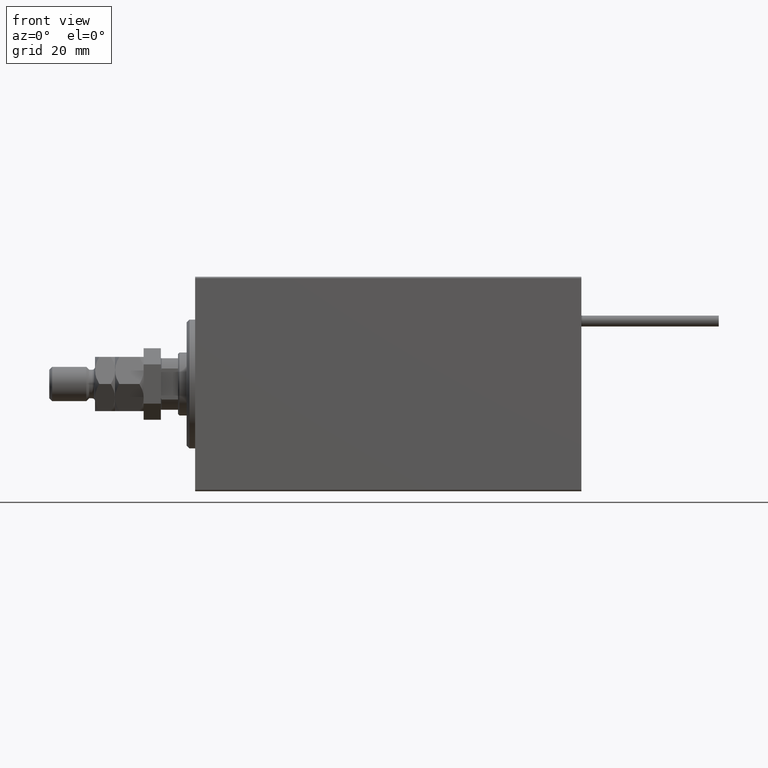
[diagram: clean part render]
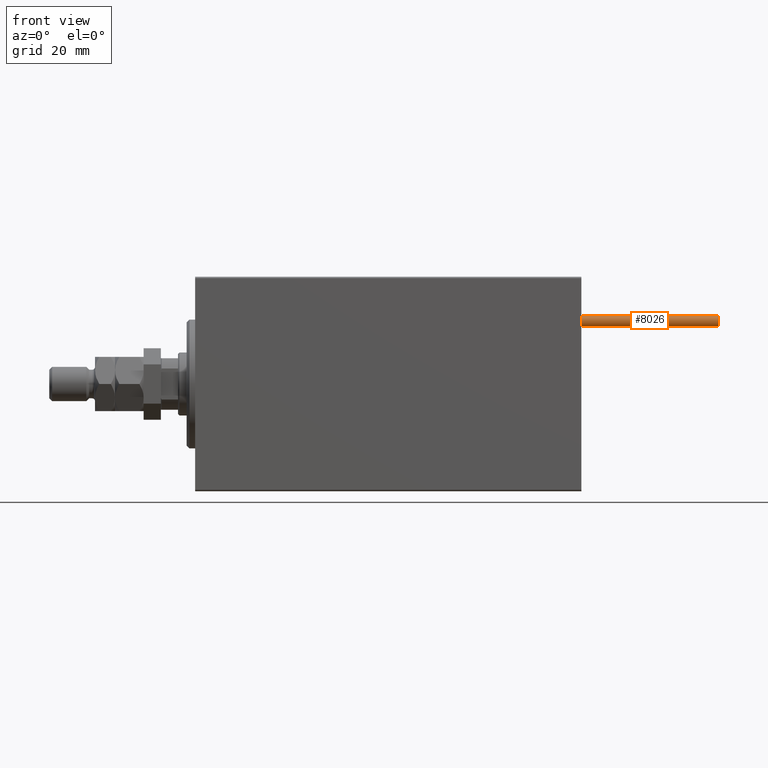
[diagram: same view with one face highlighted and labeled with its STEP entity id]
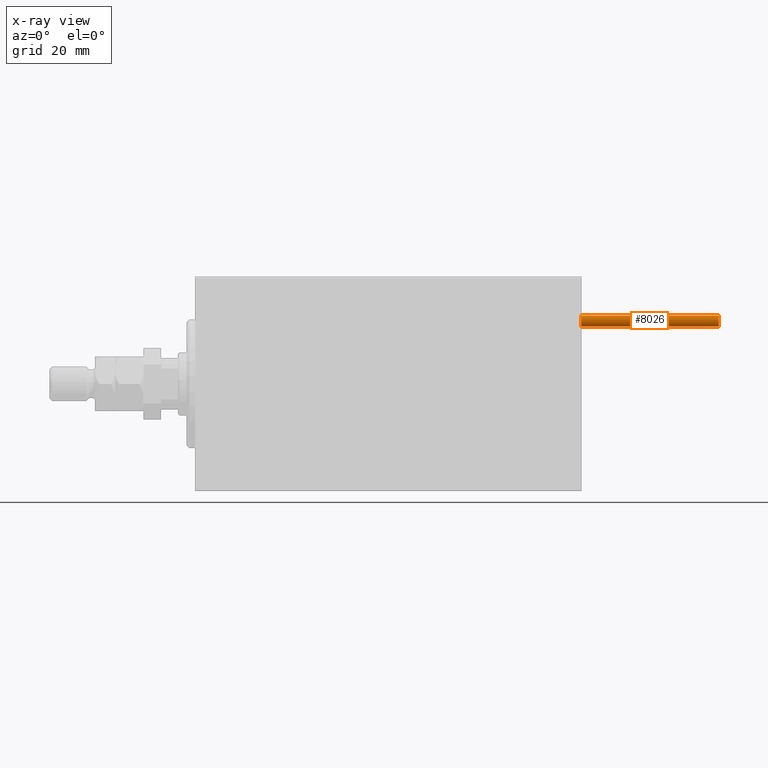
[diagram: x-ray of the same camera — body ghosted, the highlighted face saturated]
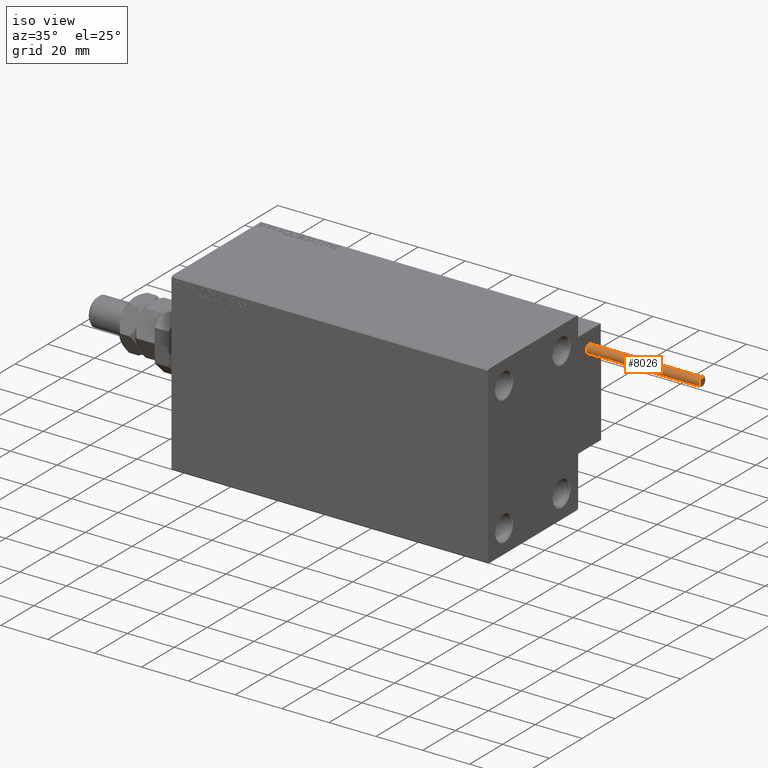
[diagram: same view with one face highlighted and labeled with its STEP entity id]
A machine part, front view. The second image highlights one B-rep face of the part: STEP entity #8026.
The next image is the same camera in x-ray: the body ghosted, the highlighted face saturated — about 0% of this face is hidden behind the body in this view.
A second angle (iso view) of the same face is appended — the face is thin or edge-on in the first view.
In plain terms, the highlighted cylindrical surface (edge-blend (fillet) strip) has radius 1.9 mm, axis along (-1, -0, -0).
Its self-contained STEP definition (entity closure, byte-faithful):
#276 = VERTEX_POINT ( 'NONE', #9654 ) ;
#869 = CIRCLE ( 'NONE', #4275, 1.899999999999999467 ) ;
#2341 = CARTESIAN_POINT ( 'NONE',  ( 1.899999999999999467, 2.326828918379970872E-16, 48.00000000000000000 ) ) ;
#2508 = CARTESIAN_POINT ( 'NONE',  ( 1.899999999999999467, 2.326828918379970872E-16, 0.000000000000000000 ) ) ;
#4275 = AXIS2_PLACEMENT_3D ( 'NONE', #19992, #15734, #32047 ) ;
#4826 = ORIENTED_EDGE ( 'NONE', *, *, #25665, .T. ) ;
#4994 = LINE ( 'NONE', #21295, #27361 ) ;
#6868 = ORIENTED_EDGE ( 'NONE', *, *, #35856, .T. ) ;
#8026 = ADVANCED_FACE ( 'NONE', ( #27216 ), #31248, .T. ) ;
#9654 = CARTESIAN_POINT ( 'NONE',  ( -1.899999999999999467, 0.000000000000000000, 48.00000000000000000 ) ) ;
#9936 = VERTEX_POINT ( 'NONE', #2508 ) ;
#12875 = VECTOR ( 'NONE', #18290, 1000.000000000000000 ) ;
#15734 = DIRECTION ( 'NONE',  ( 0.000000000000000000, 0.000000000000000000, 1.000000000000000000 ) ) ;
#18060 = DIRECTION ( 'NONE',  ( 0.000000000000000000, 0.000000000000000000, 1.000000000000000000 ) ) ;
#18176 = CARTESIAN_POINT ( 'NONE',  ( -1.899999999999999467, 0.000000000000000000, 0.000000000000000000 ) ) ;
#18290 = DIRECTION ( 'NONE',  ( -0.000000000000000000, -0.000000000000000000, -1.000000000000000000 ) ) ;
#19992 = CARTESIAN_POINT ( 'NONE',  ( 0.000000000000000000, 0.000000000000000000, 48.00000000000000000 ) ) ;
#21193 = EDGE_CURVE ( 'NONE', #276, #33582, #869, .T. ) ;
#21295 = CARTESIAN_POINT ( 'NONE',  ( -1.899999999999999467, 0.000000000000000000, 48.00000000000000000 ) ) ;
#21300 = ORIENTED_EDGE ( 'NONE', *, *, #22453, .F. ) ;
#21529 = EDGE_LOOP ( 'NONE', ( #21300, #36941, #4826, #6868 ) ) ;
#22453 = EDGE_CURVE ( 'NONE', #33582, #9936, #30075, .T. ) ;
#23496 = CIRCLE ( 'NONE', #30341, 1.899999999999999467 ) ;
#24519 = DIRECTION ( 'NONE',  ( -0.000000000000000000, -0.000000000000000000, -1.000000000000000000 ) ) ;
#25558 = CARTESIAN_POINT ( 'NONE',  ( 0.000000000000000000, 0.000000000000000000, 0.000000000000000000 ) ) ;
#25665 = EDGE_CURVE ( 'NONE', #276, #40719, #4994, .T. ) ;
#26957 = DIRECTION ( 'NONE',  ( -0.000000000000000000, -0.000000000000000000, -1.000000000000000000 ) ) ;
#27216 = FACE_OUTER_BOUND ( 'NONE', #21529, .T. ) ;
#27361 = VECTOR ( 'NONE', #24519, 1000.000000000000000 ) ;
#30075 = LINE ( 'NONE', #50947, #12875 ) ;
#30341 = AXIS2_PLACEMENT_3D ( 'NONE', #25558, #18060, #34376 ) ;
#31248 = CYLINDRICAL_SURFACE ( 'NONE', #52714, 1.899999999999999467 ) ;
#32047 = DIRECTION ( 'NONE',  ( 1.000000000000000000, 0.000000000000000000, 0.000000000000000000 ) ) ;
#33582 = VERTEX_POINT ( 'NONE', #2341 ) ;
#34376 = DIRECTION ( 'NONE',  ( 1.000000000000000000, 0.000000000000000000, 0.000000000000000000 ) ) ;
#35856 = EDGE_CURVE ( 'NONE', #40719, #9936, #23496, .T. ) ;
#36941 = ORIENTED_EDGE ( 'NONE', *, *, #21193, .F. ) ;
#39270 = CARTESIAN_POINT ( 'NONE',  ( 0.000000000000000000, 0.000000000000000000, 48.00000000000000000 ) ) ;
#40719 = VERTEX_POINT ( 'NONE', #18176 ) ;
#43290 = DIRECTION ( 'NONE',  ( -1.000000000000000000, 0.000000000000000000, 0.000000000000000000 ) ) ;
#50947 = CARTESIAN_POINT ( 'NONE',  ( 1.899999999999999467, 2.326828918379970872E-16, 48.00000000000000000 ) ) ;
#52714 = AXIS2_PLACEMENT_3D ( 'NONE', #39270, #26957, #43290 ) ;